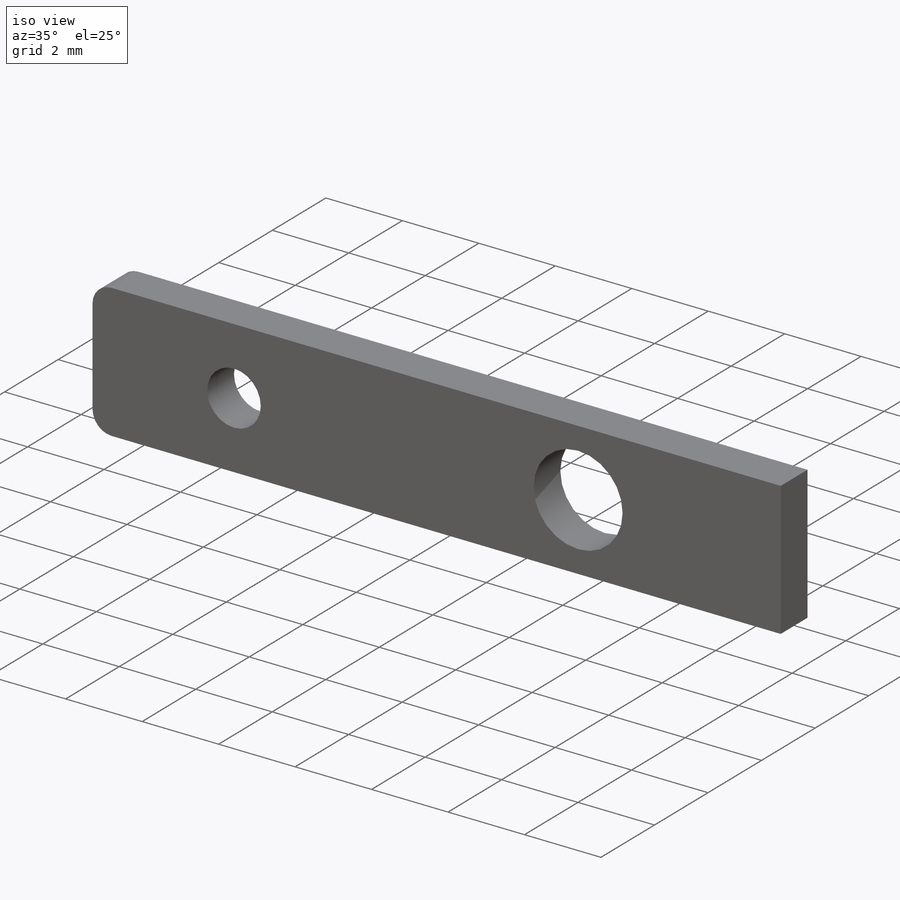
[diagram: iso view]
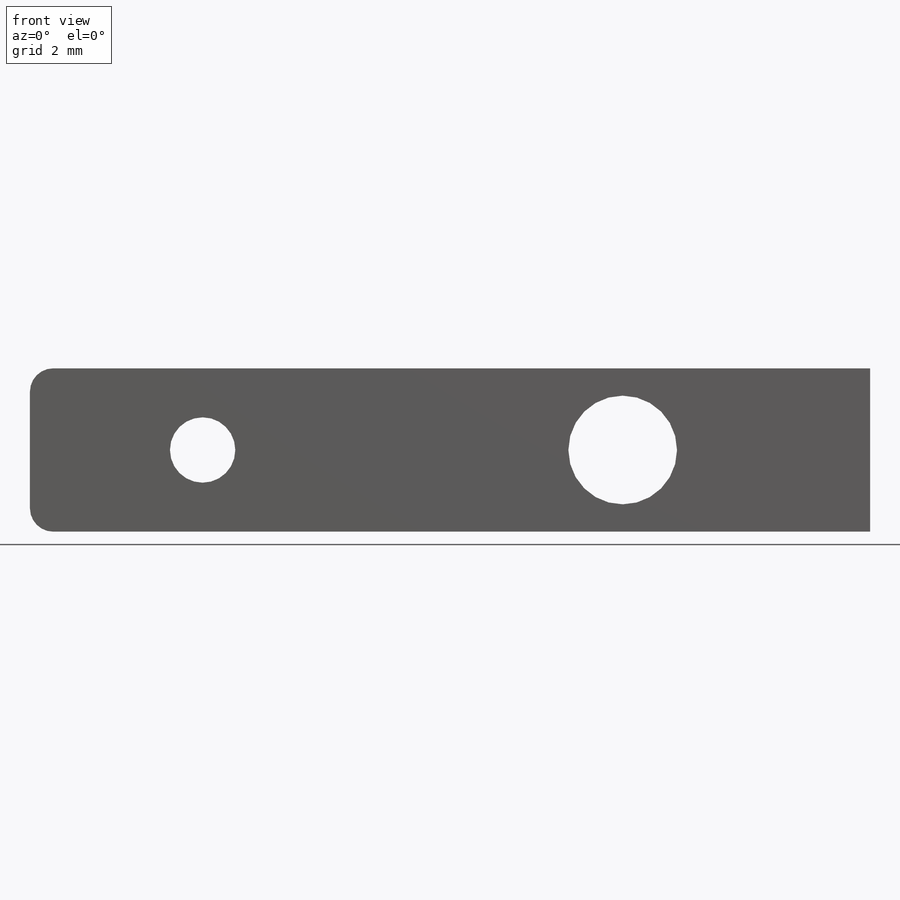
[diagram: front view]
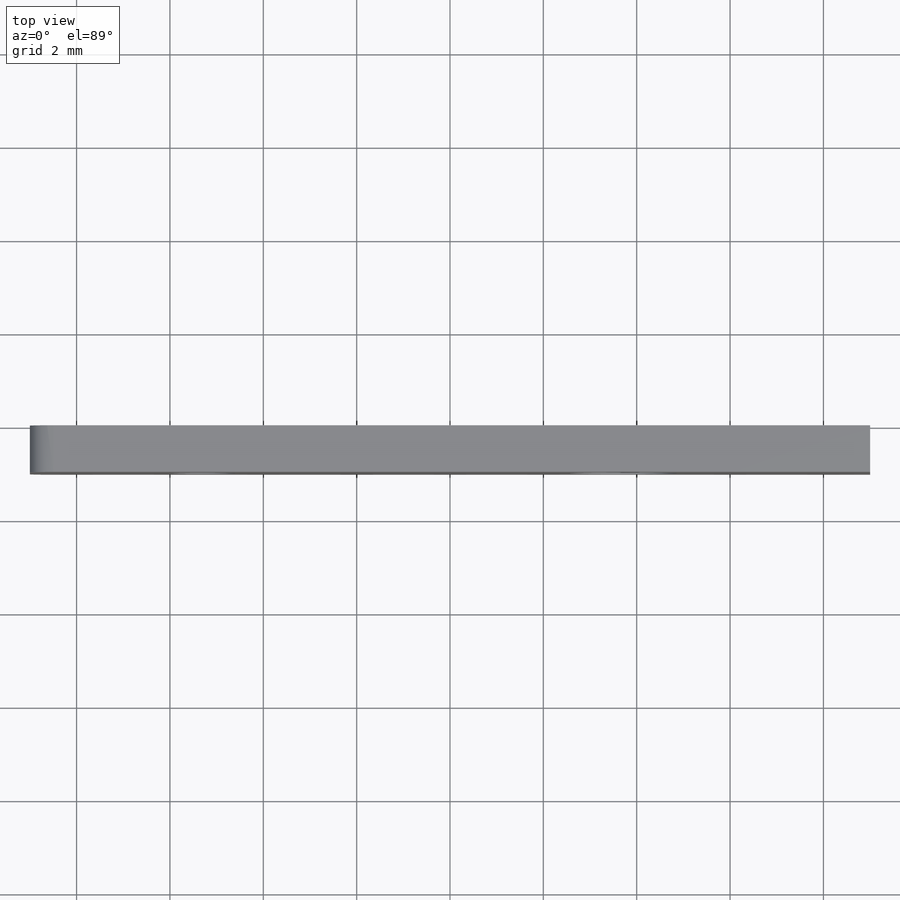
[diagram: top view]
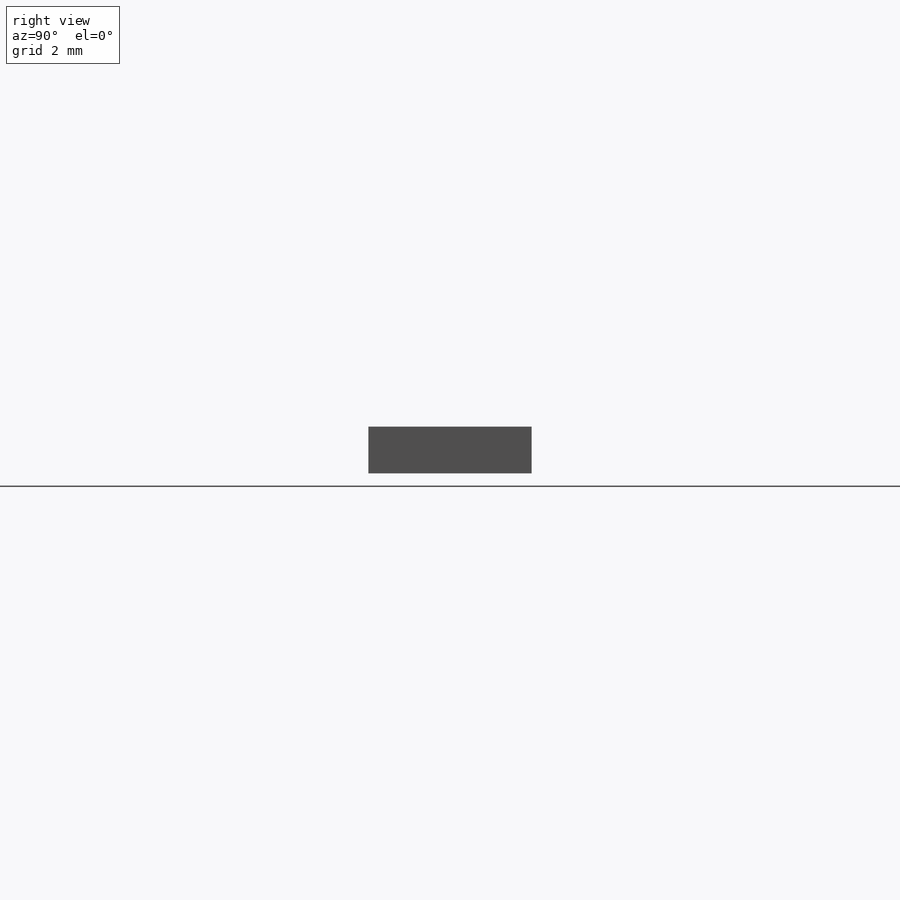
[diagram: right view]
SOLIDWORKS PART (.sldprt)
format: sldprt  version: not decoded by parser v0  size: 180,736 bytes
history: native  units: mm
features: sketch x3, cut_extrude x2, material x1, extrude x1, fillet x1 (+12 scaffold rows collapsed)
feature tree (20):
  scaffold x12  (default folders/planes/origin — collapsed)
  material  "Aluminum Bronze"
  sketch  "Sketch2"  dims[D1=3.5mm D2=18.0mm]
  extrude  "Boss-Extrude1"  Depth=1mm
  sketch  "Sketch3"  dims[D1=1.4mm D2=3.7mm]
  cut_extrude  "Cut-Extrude1"  [1 undecoded]
  fillet  "Fillet1"  Radius=0.5mm
  sketch  "Sketch4"  dims[D2=~2.328028mm D1=0.0mm]
  cut_extrude  "Cut-Extrude3"  [1 undecoded]
decode coverage: 5 of 7 modeling features carry decoded parameters
note: ~ marks probable driven/reference dimensions
note: 2 parameter values undecoded
note: suppression state not decoded; provenance and decode notes live in map.json
